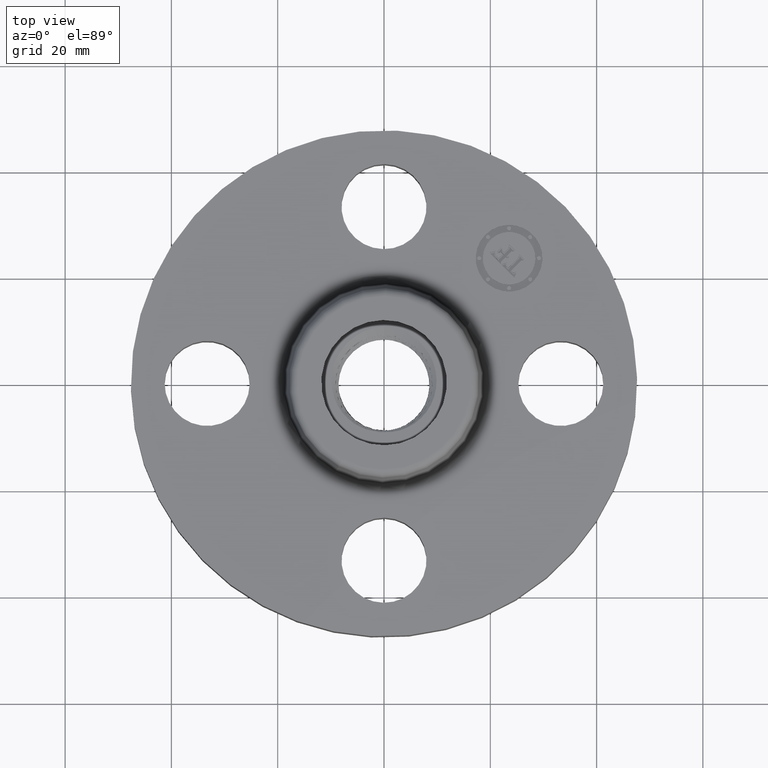
[diagram: clean part render]
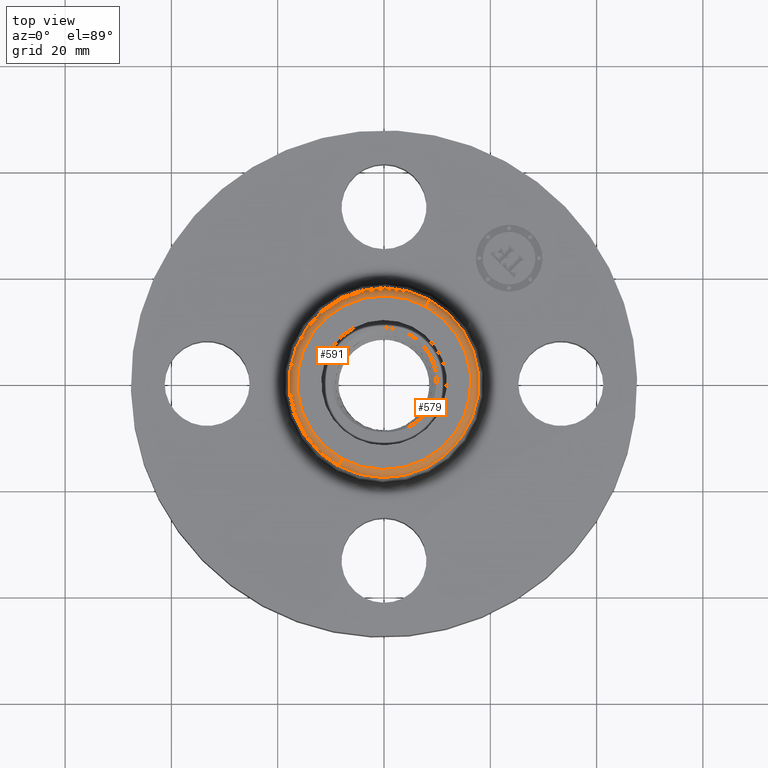
[diagram: same view with one multi-face feature highlighted, each face labeled with its STEP entity id]
A machine part, top view. The highlighted faces form ONE feature: a constant-radius fillet chain: 2 tangent blend faces with common blend radius 1.524 mm. The faces share edges in the B-rep.
Their STEP definitions:
[1] entity #591 (Torus):
#539=AXIS2_PLACEMENT_3D('Circle Axis2P3D',#537,#538,$) ;
#552=AXIS2_PLACEMENT_3D('Torus Axis2P3D',#549,#550,#551) ;
#556=AXIS2_PLACEMENT_3D('Circle Axis2P3D',#554,#555,$) ;
#570=AXIS2_PLACEMENT_3D('Circle Axis2P3D',#568,#569,$) ;
#582=AXIS2_PLACEMENT_3D('Circle Axis2P3D',#580,#581,$) ;
#515=CARTESIAN_POINT('Vertex',(0.336709115179,0.616341901124,0.830418890663)) ;
#522=CARTESIAN_POINT('Vertex',(-0.336709115179,-0.616341901124,0.830418890663)) ;
#537=CARTESIAN_POINT('Axis2P3D Location',(0.,0.,0.830418890663)) ;
#549=CARTESIAN_POINT('Axis2P3D Location',(0.,0.,0.820000000003)) ;
#554=CARTESIAN_POINT('Axis2P3D Location',(0.308380595934,0.564486894472,0.820000000003)) ;
#558=CARTESIAN_POINT('Vertex',(0.308380595934,0.564486894472,0.880000000004)) ;
#565=CARTESIAN_POINT('Vertex',(-0.308380595934,-0.564486894472,0.880000000004)) ;
#568=CARTESIAN_POINT('Axis2P3D Location',(-0.308380595934,-0.564486894472,0.820000000003)) ;
#580=CARTESIAN_POINT('Axis2P3D Location',(0.,0.,0.880000000004)) ;
#538=DIRECTION('Axis2P3D Direction',(0.,0.,-0.0393700787402)) ;
#550=DIRECTION('Axis2P3D Direction',(0.,0.,-0.0393700787402)) ;
#551=DIRECTION('Axis2P3D XDirection',(-0.0188750212049,-0.0345504945626,0.)) ;
#555=DIRECTION('Axis2P3D Direction',(-0.0345504945626,0.0188750212049,0.)) ;
#569=DIRECTION('Axis2P3D Direction',(0.0345504945626,-0.0188750212049,0.)) ;
#581=DIRECTION('Axis2P3D Direction',(0.,0.,-0.0393700787402)) ;
#586=ORIENTED_EDGE('',*,*,#541,.F.) ;
#587=ORIENTED_EDGE('',*,*,#572,.T.) ;
#588=ORIENTED_EDGE('',*,*,#584,.T.) ;
#589=ORIENTED_EDGE('',*,*,#560,.F.) ;
#591=ADVANCED_FACE('PartBody',(#590),#553,.T.) ;
#540=CIRCLE('generated circle',#539,0.702317853486) ;
#557=CIRCLE('generated circle',#556,0.0600000000002) ;
#571=CIRCLE('generated circle',#570,0.0600000000002) ;
#583=CIRCLE('generated circle',#582,0.643229388305) ;
#553=TOROIDAL_SURFACE('homeo Torus',#552,0.643229388305,0.0600000000002) ;
#541=EDGE_CURVE('',#523,#516,#540,.T.) ;
#560=EDGE_CURVE('',#516,#559,#557,.F.) ;
#572=EDGE_CURVE('',#523,#566,#571,.F.) ;
#584=EDGE_CURVE('',#566,#559,#583,.T.) ;
#585=EDGE_LOOP('',(#586,#587,#588,#589)) ;
#590=FACE_OUTER_BOUND('',#585,.T.) ;
#516=VERTEX_POINT('',#515) ;
#523=VERTEX_POINT('',#522) ;
#559=VERTEX_POINT('',#558) ;
#566=VERTEX_POINT('',#565) ;
[2] entity #579 (Torus):
#520=AXIS2_PLACEMENT_3D('Circle Axis2P3D',#518,#519,$) ;
#552=AXIS2_PLACEMENT_3D('Torus Axis2P3D',#549,#550,#551) ;
#556=AXIS2_PLACEMENT_3D('Circle Axis2P3D',#554,#555,$) ;
#563=AXIS2_PLACEMENT_3D('Circle Axis2P3D',#561,#562,$) ;
#570=AXIS2_PLACEMENT_3D('Circle Axis2P3D',#568,#569,$) ;
#515=CARTESIAN_POINT('Vertex',(0.336709115179,0.616341901124,0.830418890663)) ;
#518=CARTESIAN_POINT('Axis2P3D Location',(0.,0.,0.830418890663)) ;
#522=CARTESIAN_POINT('Vertex',(-0.336709115179,-0.616341901124,0.830418890663)) ;
#549=CARTESIAN_POINT('Axis2P3D Location',(0.,0.,0.820000000003)) ;
#554=CARTESIAN_POINT('Axis2P3D Location',(0.308380595934,0.564486894472,0.820000000003)) ;
#558=CARTESIAN_POINT('Vertex',(0.308380595934,0.564486894472,0.880000000004)) ;
#561=CARTESIAN_POINT('Axis2P3D Location',(0.,0.,0.880000000004)) ;
#565=CARTESIAN_POINT('Vertex',(-0.308380595934,-0.564486894472,0.880000000004)) ;
#568=CARTESIAN_POINT('Axis2P3D Location',(-0.308380595934,-0.564486894472,0.820000000003)) ;
#519=DIRECTION('Axis2P3D Direction',(0.,0.,-0.0393700787402)) ;
#550=DIRECTION('Axis2P3D Direction',(0.,0.,-0.0393700787402)) ;
#551=DIRECTION('Axis2P3D XDirection',(-0.0188750212049,-0.0345504945626,0.)) ;
#555=DIRECTION('Axis2P3D Direction',(-0.0345504945626,0.0188750212049,0.)) ;
#562=DIRECTION('Axis2P3D Direction',(0.,0.,-0.0393700787402)) ;
#569=DIRECTION('Axis2P3D Direction',(0.0345504945626,-0.0188750212049,0.)) ;
#574=ORIENTED_EDGE('',*,*,#524,.F.) ;
#575=ORIENTED_EDGE('',*,*,#560,.T.) ;
#576=ORIENTED_EDGE('',*,*,#567,.T.) ;
#577=ORIENTED_EDGE('',*,*,#572,.F.) ;
#579=ADVANCED_FACE('PartBody',(#578),#553,.T.) ;
#521=CIRCLE('generated circle',#520,0.702317853486) ;
#557=CIRCLE('generated circle',#556,0.0600000000002) ;
#564=CIRCLE('generated circle',#563,0.643229388305) ;
#571=CIRCLE('generated circle',#570,0.0600000000002) ;
#553=TOROIDAL_SURFACE('homeo Torus',#552,0.643229388305,0.0600000000002) ;
#524=EDGE_CURVE('',#516,#523,#521,.T.) ;
#560=EDGE_CURVE('',#516,#559,#557,.F.) ;
#567=EDGE_CURVE('',#559,#566,#564,.T.) ;
#572=EDGE_CURVE('',#523,#566,#571,.F.) ;
#573=EDGE_LOOP('',(#574,#575,#576,#577)) ;
#578=FACE_OUTER_BOUND('',#573,.T.) ;
#516=VERTEX_POINT('',#515) ;
#523=VERTEX_POINT('',#522) ;
#559=VERTEX_POINT('',#558) ;
#566=VERTEX_POINT('',#565) ;